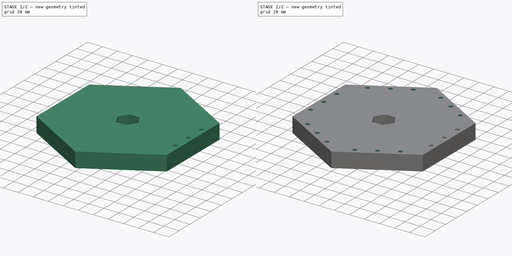
[diagram: build sequence overview — one tinted view per stage of 2, left to right]
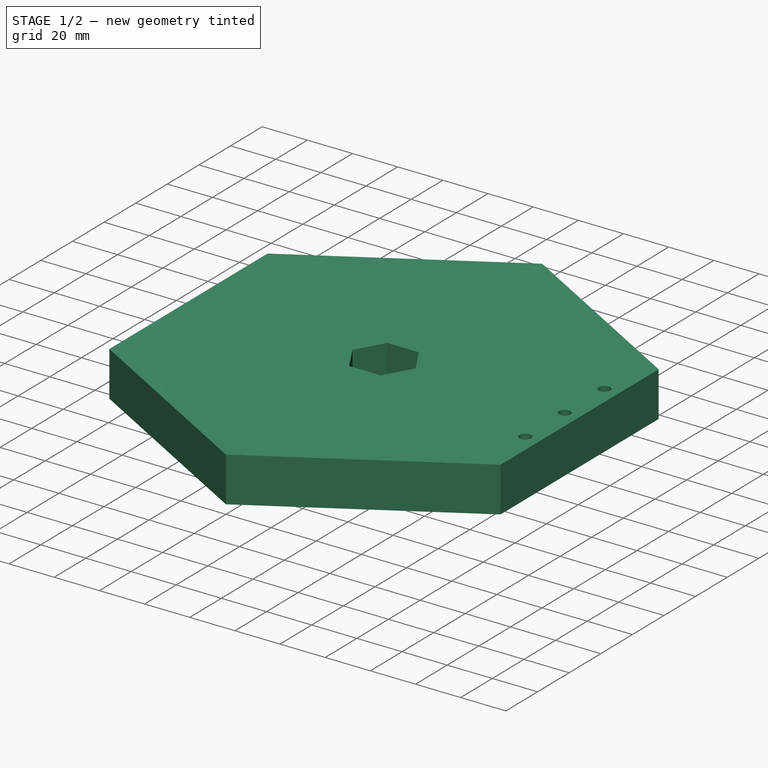
[diagram: stage 1 of 2 — iso view after this stage's code; geometry added in this stage tinted green]
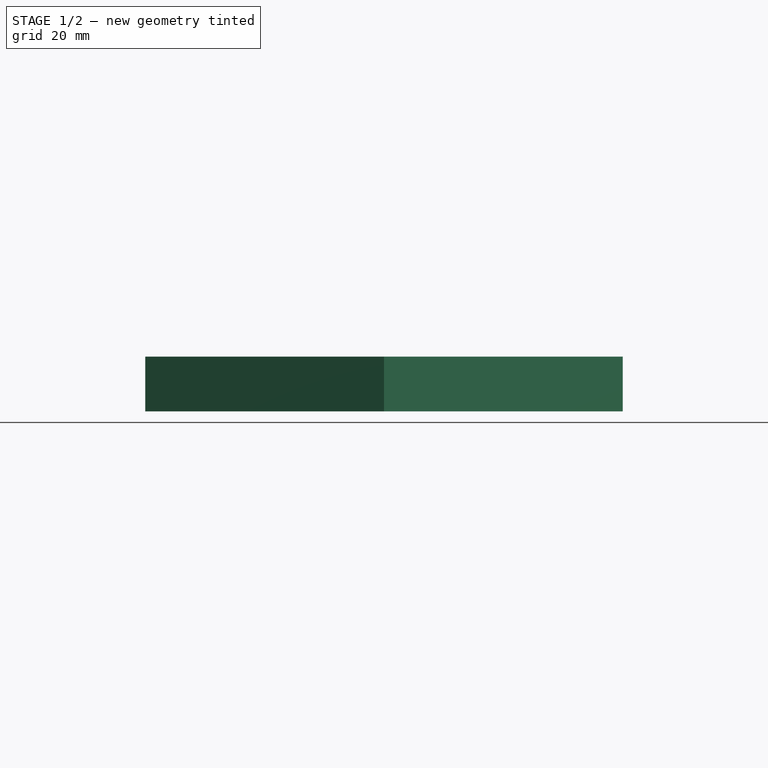
[diagram: stage 1 of 2 — front view after this stage's code; geometry added in this stage tinted green]
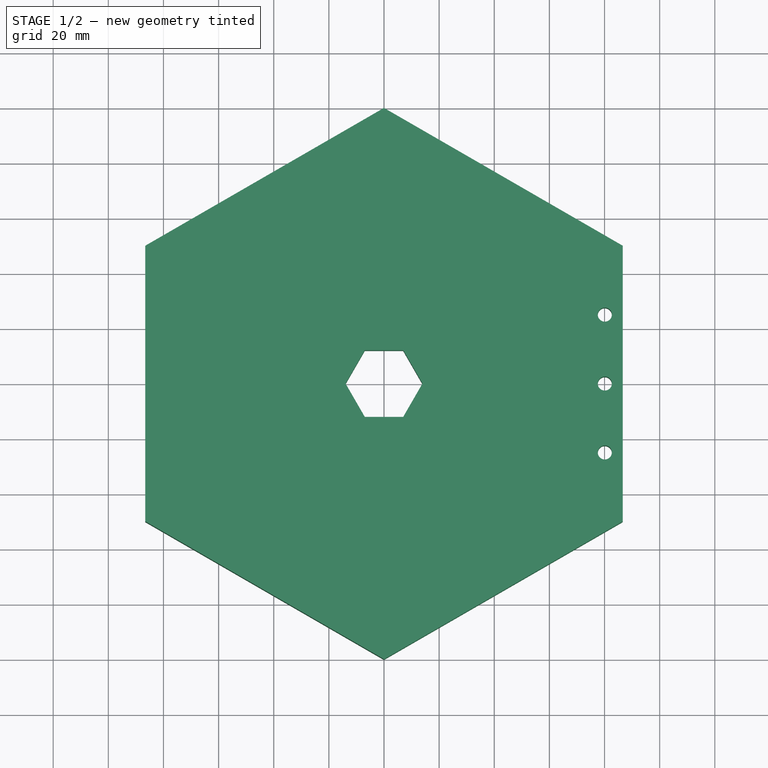
[diagram: stage 1 of 2 — top view after this stage's code; geometry added in this stage tinted green]
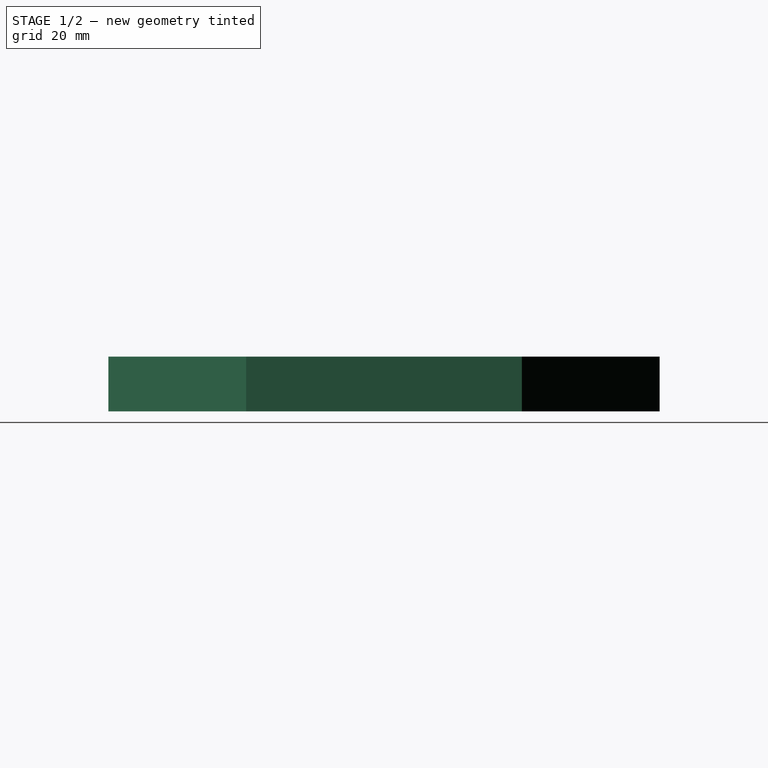
[diagram: stage 1 of 2 — right view after this stage's code; geometry added in this stage tinted green]
FCSTD DOCUMENT  (FreeCAD 0.18R16110 (Git))
Label: hubcenter
License: All rights reserved
LicenseURL: http://en.wikipedia.org/wiki/All_rights_reserved
objects: Sketcher::SketchObject×2, PartDesign::Pad×1, PartDesign::Pocket×1, PartDesign::PolarPattern×1, PartDesign::Body×1
note: 8 computed .brp shape members not serialized (recipe doc carries the construction recipe); baked Part::Feature solids carry a one-line shape summary decoded from their .brp

FEATURE [Sketcher::SketchObject] Sketch
  MapMode = 5
  Support = -> [XY_Plane]
  sketch-geometry (14):
    g0: LineSegment StartX=0 StartY=100 StartZ=0 EndX=-86.6025 EndY=50 EndZ=0
    g1: LineSegment StartX=-86.6025 StartY=50 StartZ=0 EndX=-86.6025 EndY=-50 EndZ=0
    g2: LineSegment StartX=-86.6025 StartY=-50 StartZ=0 EndX=1.42e-14 EndY=-100 EndZ=0
    g3: LineSegment StartX=1.42e-14 StartY=-100 StartZ=0 EndX=86.6025 EndY=-50 EndZ=0
    g4: LineSegment StartX=86.6025 StartY=-50 StartZ=0 EndX=86.6025 EndY=50 EndZ=0
    g5: LineSegment StartX=86.6025 StartY=50 StartZ=0 EndX=0 EndY=100 EndZ=0
    g6: Circle [constr] CenterX=0 CenterY=0 CenterZ=0 NormalX=0 NormalY=0 NormalZ=1 AngleXU=0 Radius=100
    g7: LineSegment StartX=-13.95 StartY=0 StartZ=0 EndX=-6.975 EndY=-12.0811 EndZ=0
    g8: LineSegment StartX=-6.975 StartY=-12.0811 StartZ=0 EndX=6.975 EndY=-12.0811 EndZ=0
    g9: LineSegment StartX=6.975 StartY=-12.0811 StartZ=0 EndX=13.95 EndY=0 EndZ=0
    g10: LineSegment StartX=13.95 StartY=4e-16 StartZ=0 EndX=6.975 EndY=12.0811 EndZ=0
    g11: LineSegment StartX=6.975 StartY=12.0811 StartZ=0 EndX=-6.975 EndY=12.0811 EndZ=0
    g12: LineSegment StartX=-6.975 StartY=12.0811 StartZ=0 EndX=-13.95 EndY=0 EndZ=0
    g13: Circle [constr] CenterX=0 CenterY=0 CenterZ=0 NormalX=0 NormalY=0 NormalZ=1 AngleXU=0 Radius=13.95
  constraints (32):
    c: Coincident(g0,g1)
    c: Coincident(g1,g2)
    c: Coincident(g2,g3)
    c: Coincident(g3,g4)
    c: Coincident(g4,g5)
    c: Coincident(g5,g0)
    c: Equal(g0, g1-g5) x5
    c: PointOnObject(g0,g6)
    c: PointOnObject(g1,g6)
    c: PointOnObject(g2,g6)
    c: PointOnObject(g3,g6)
    c: PointOnObject(g4,g6)
    c: PointOnObject(g5,g6)
    c: Coincident(g6,g-1)
    c: PointOnObject(g5,g-2)
    c: Radius(g6) = 100
    c: Coincident(g7,g8)
    c: Coincident(g8,g9)
    c: Coincident(g9,g10)
    c: Coincident(g10,g11)
    c: Coincident(g11,g12)
    c: Coincident(g12,g7)
    c: Equal(g7, g8-g12) x5
    c: PointOnObject(g7,g13)
    c: PointOnObject(g8,g13)
    c: PointOnObject(g9,g13)
    c: PointOnObject(g10,g13)
    c: PointOnObject(g11,g13)
    c: PointOnObject(g12,g13)
    c: Coincident(g13,g-1)
    c: PointOnObject(g12,g-1)
    c: Radius(g13) = 13.95
FEATURE [PartDesign::Pad] Pad
  Length = 19.9
  Length2 = 100
  Profile = -> Sketch
  Type = 0
FEATURE [Sketcher::SketchObject] Sketch001
  MapMode = 5
  Placement = pos=(0,0,19.9) rot=(0,0,1;0rad)
  Support = -> [Pad]
  sketch-geometry (4):
    g0: LineSegment [constr] StartX=80.1 StartY=25 StartZ=0 EndX=80.1 EndY=-25 EndZ=0
    g1: Circle CenterX=80.1 CenterY=25 CenterZ=0 NormalX=0 NormalY=0 NormalZ=1 AngleXU=0 Radius=2.55
    g2: Circle CenterX=80.1 CenterY=-25 CenterZ=0 NormalX=0 NormalY=0 NormalZ=1 AngleXU=0 Radius=2.55
    g3: Circle CenterX=80.1 CenterY=0 CenterZ=0 NormalX=0 NormalY=0 NormalZ=1 AngleXU=0 Radius=2.55
  constraints (11):
    c: Vertical(g0)
    c: DistanceY(g0) = 25
    c: DistanceY(g0) = -25
    c: DistanceX(g0) = 80.1
    c: Coincident(g1,g0)
    c: Coincident(g2,g0)
    c: PointOnObject(g3,g0)
    c: Equal(g2,g3)
    c: Equal(g3,g1)
    c: DistanceY(g3) = 0
    c: Radius(g1) = 2.55
FEATURE [PartDesign::Pocket] Pocket
  BaseFeature = -> Pad
  Length = 5
  Length2 = 100
  Profile = -> Sketch001
  Type = 1
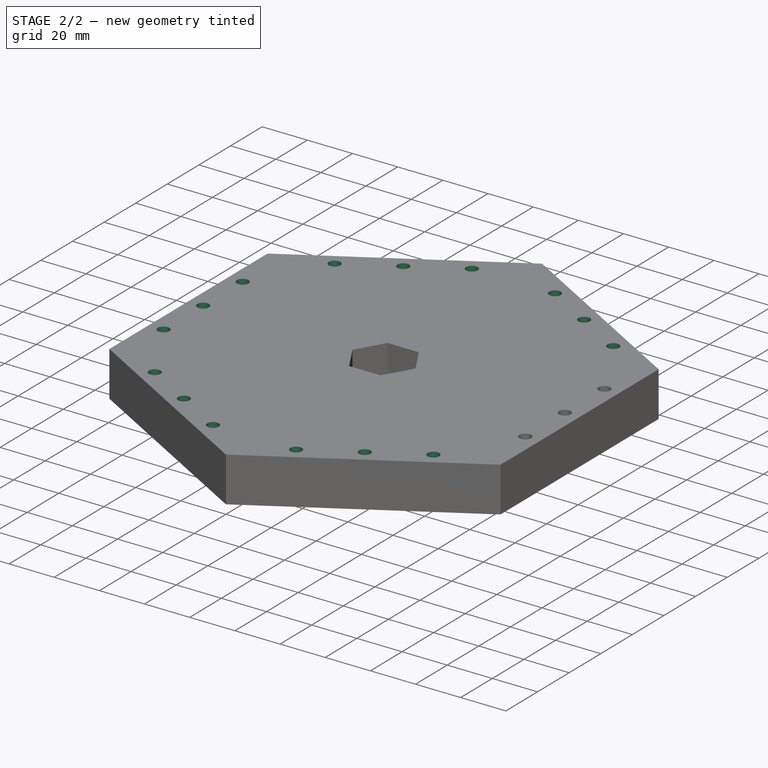
[diagram: stage 2 of 2 — iso view after this stage's code; geometry added in this stage tinted green]
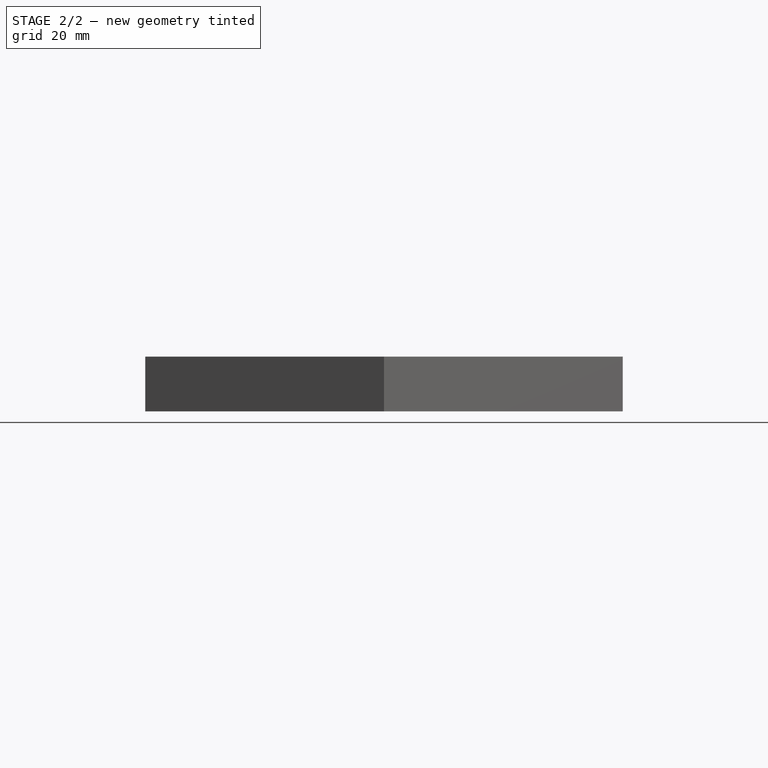
[diagram: stage 2 of 2 — front view after this stage's code; geometry added in this stage tinted green]
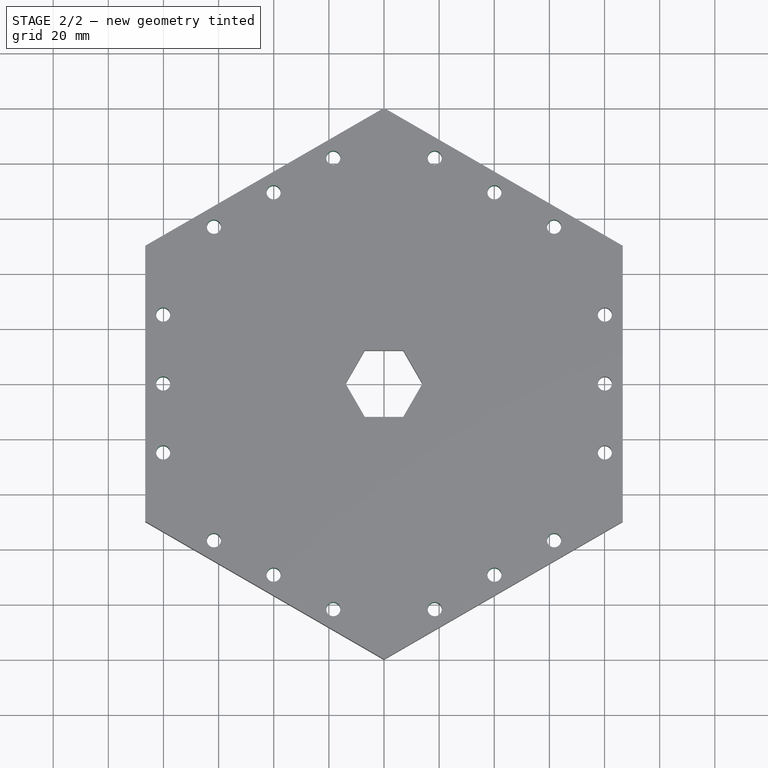
[diagram: stage 2 of 2 — top view after this stage's code; geometry added in this stage tinted green]
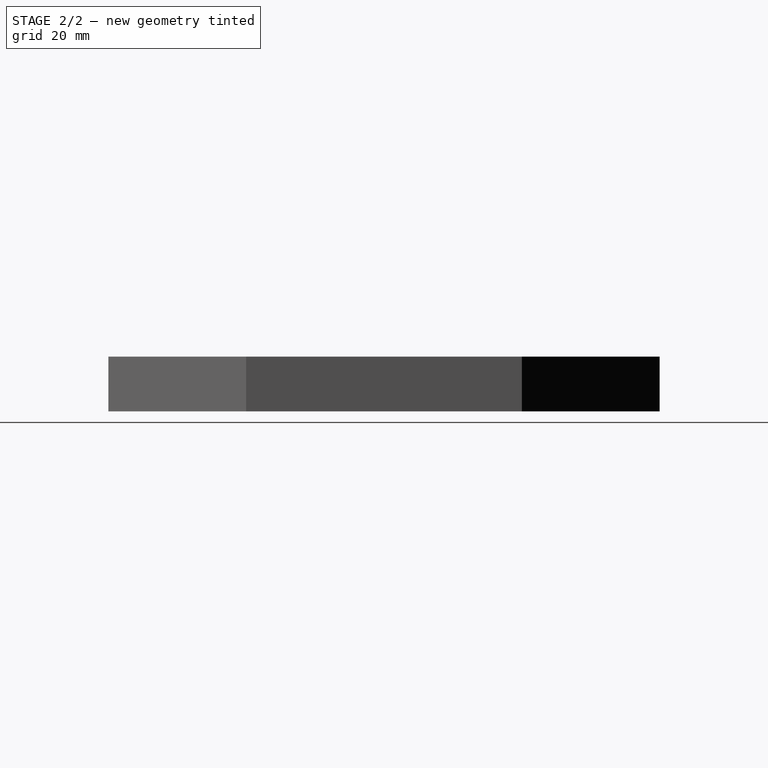
[diagram: stage 2 of 2 — right view after this stage's code; geometry added in this stage tinted green]
FEATURE [PartDesign::PolarPattern] PolarPattern
  Angle = 360
  Axis = -> Sketch001 [N_Axis]
  BaseFeature = -> Pocket
  Occurrences = 6
  Originals = -> [Pocket]
FEATURE [PartDesign::Body] Body
  Group = -> [Sketch,Pad,Sketch001,Pocket,PolarPattern]
  Origin = -> Origin
  Tip = -> PolarPattern
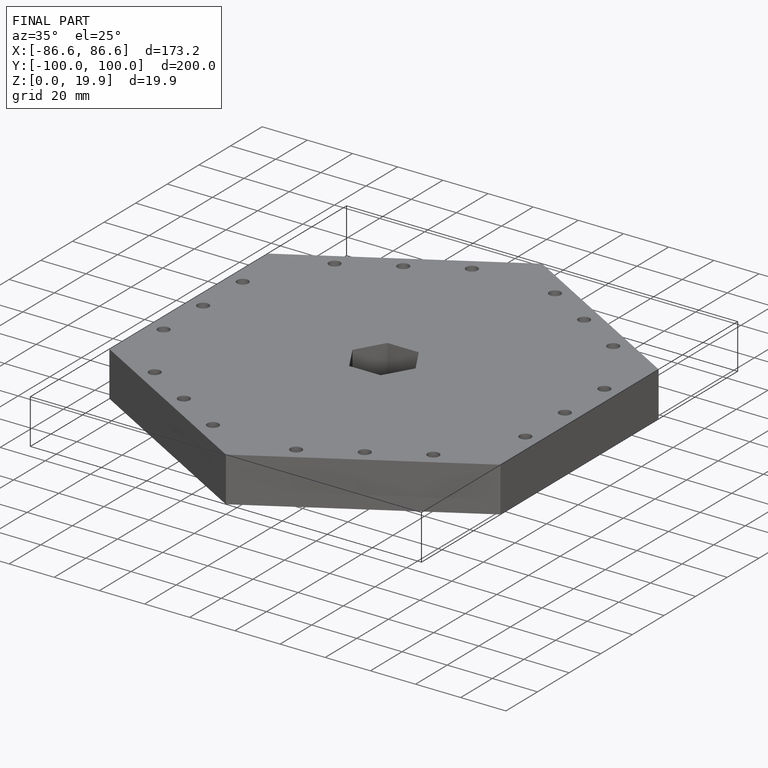
[diagram: finished part — iso view with bounding-box wireframe]
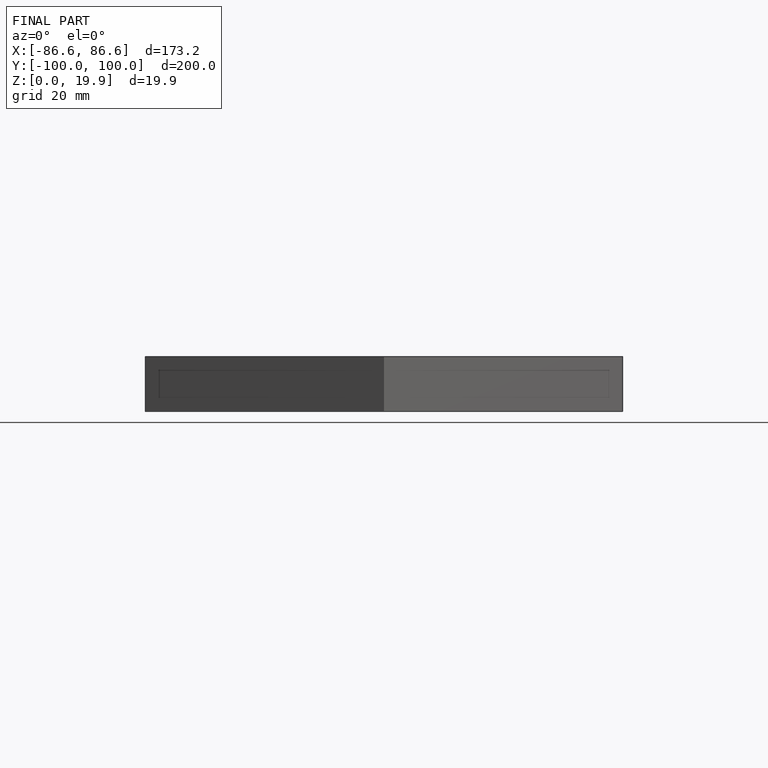
[diagram: finished part — front view with bounding-box wireframe]
